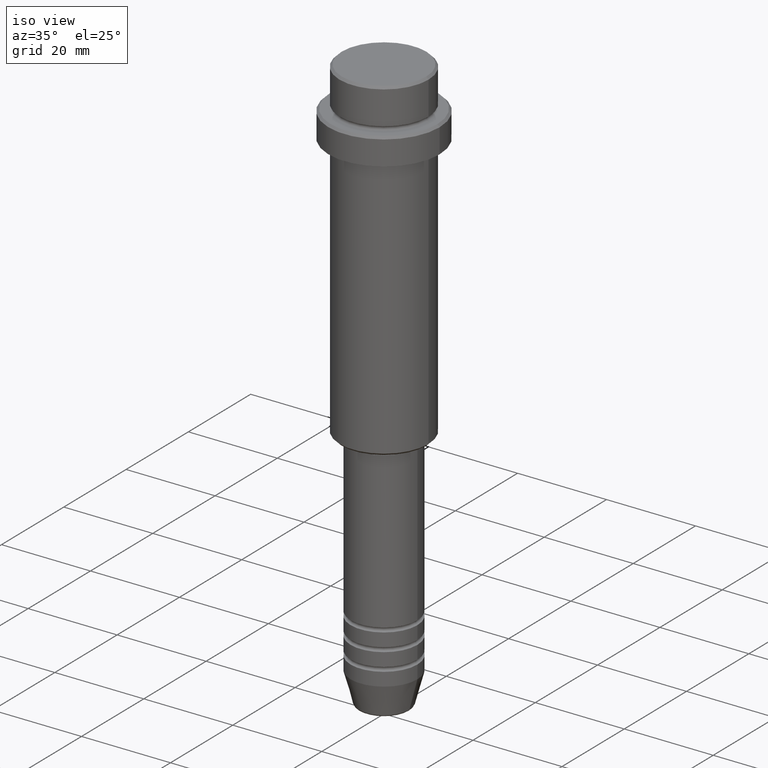
[diagram: clean part render]
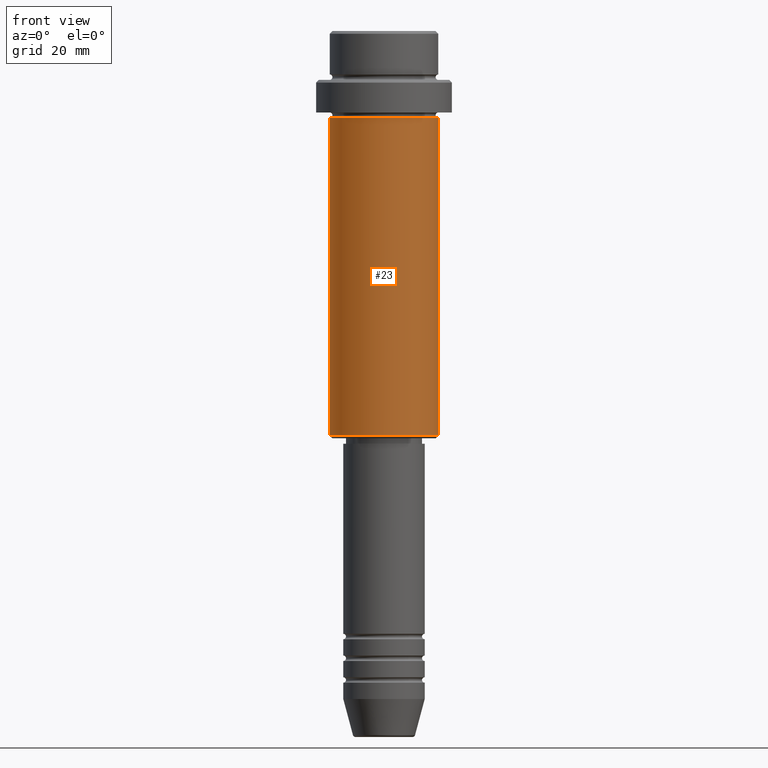
[diagram: tour spotlight — one face highlighted and labeled with its STEP entity id]
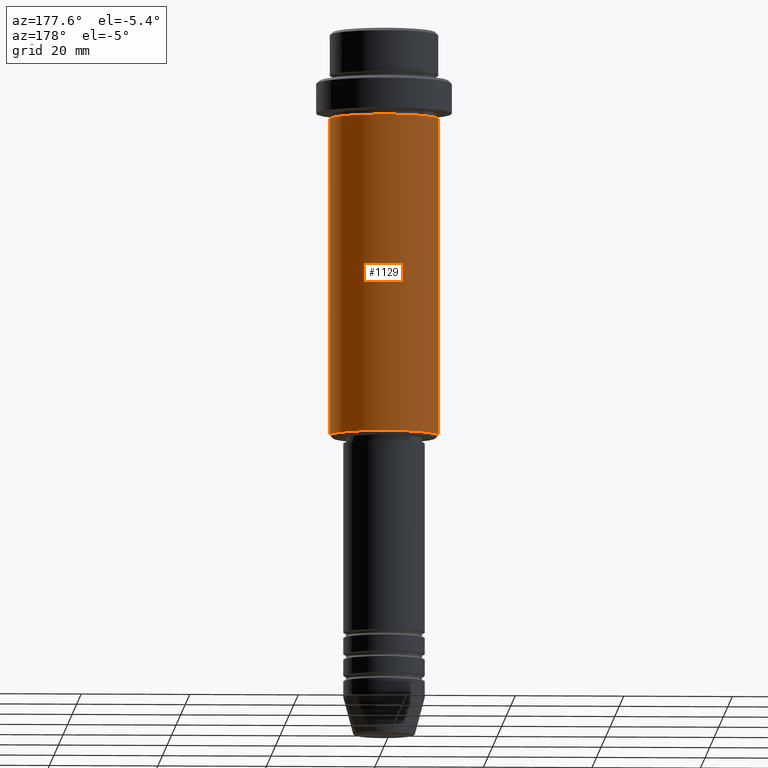
[diagram: tour spotlight — one face highlighted and labeled with its STEP entity id]
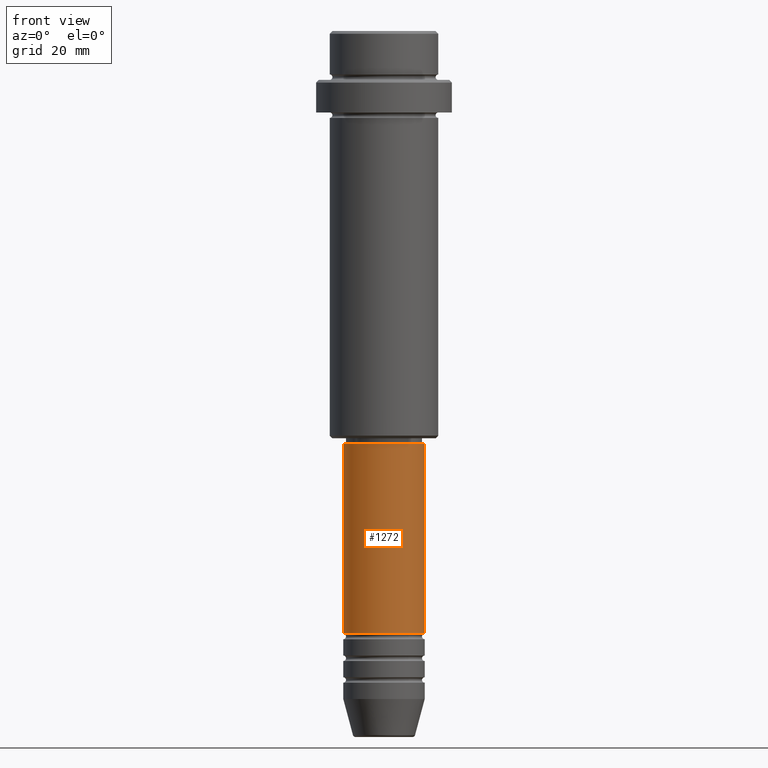
[diagram: tour spotlight — one face highlighted and labeled with its STEP entity id]
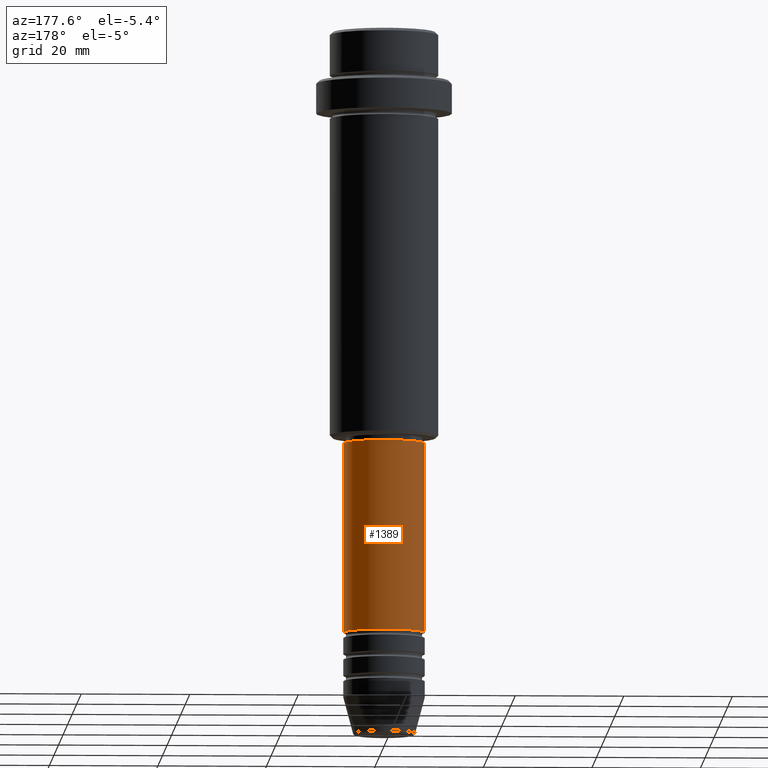
[diagram: tour spotlight — one face highlighted and labeled with its STEP entity id]
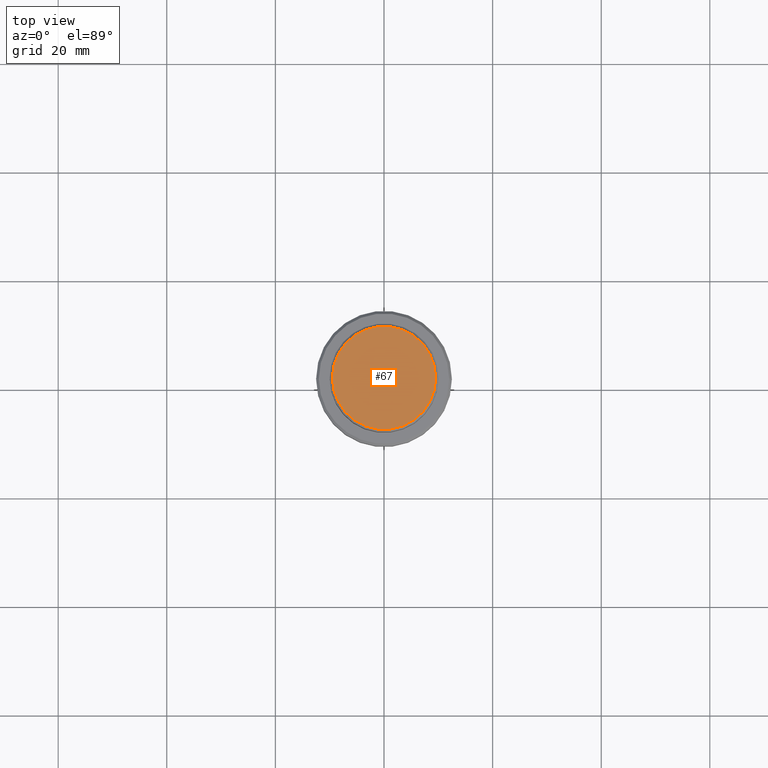
[diagram: tour spotlight — one face highlighted and labeled with its STEP entity id]
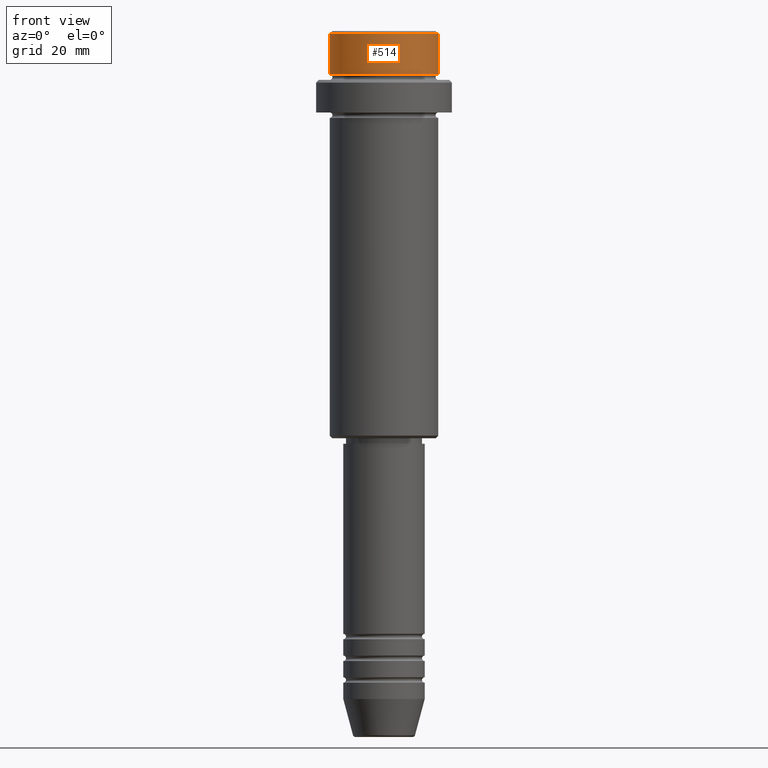
[diagram: tour spotlight — one face highlighted and labeled with its STEP entity id]
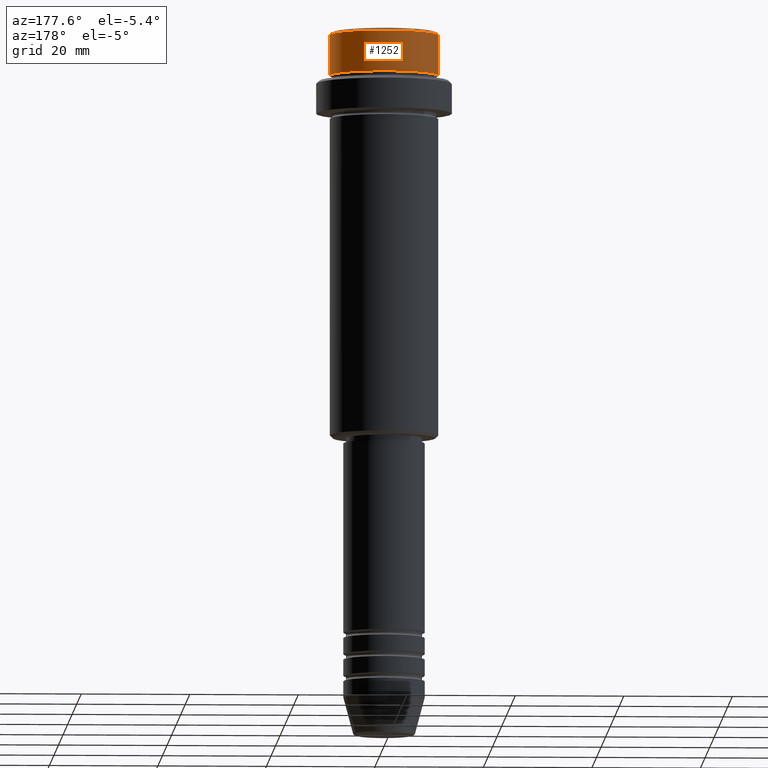
[diagram: tour spotlight — one face highlighted and labeled with its STEP entity id]
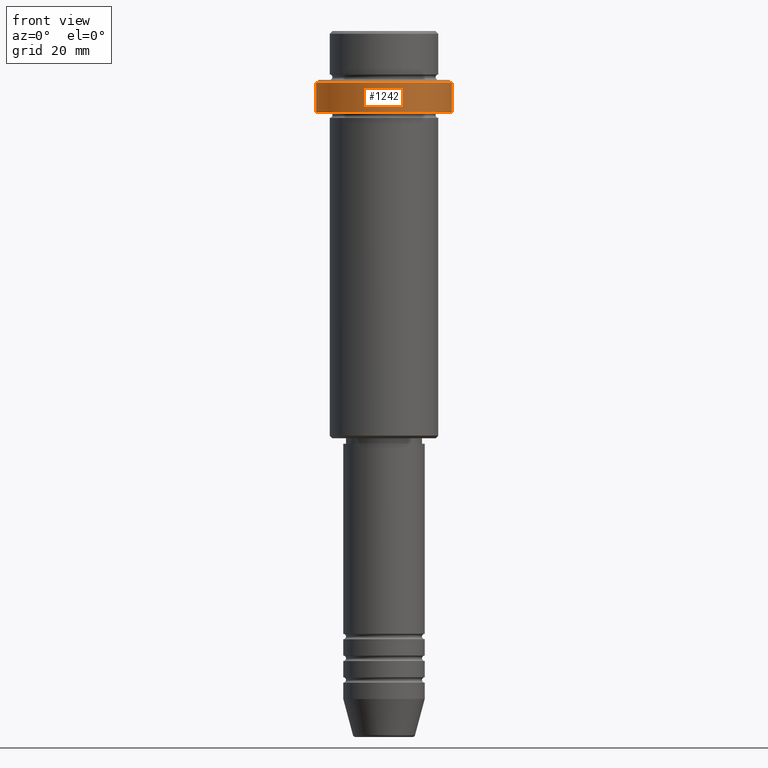
[diagram: tour spotlight — one face highlighted and labeled with its STEP entity id]
A machine part: a face-by-face anatomy tour. The part has 52 B-rep faces; the first image is the clean iso view, then the 8 largest visible faces are spotlighted one at a time (largest first), each with its STEP entity span.

Face 1 — front view, entity #23. In plain terms, the highlighted cylindrical surface (partial cylindrical patch) has radius 10 mm, axis along (-0, -0, 1).
Definition (entity closure, byte-faithful):
#23 = ADVANCED_FACE ( 'NONE', ( #491 ), #80, .T. ) ;
#31 = DIRECTION ( 'NONE',  ( -1.000000000000000000, 0.000000000000000000, 0.000000000000000000 ) ) ;
#38 = AXIS2_PLACEMENT_3D ( 'NONE', #1281, #190, #270 ) ;
#51 = CARTESIAN_POINT ( 'NONE',  ( 9.999999999999998224, 0.000000000000000000, 0.000000000000000000 ) ) ;
#80 = CYLINDRICAL_SURFACE ( 'NONE', #121, 9.999999999999998224 ) ;
#121 = AXIS2_PLACEMENT_3D ( 'NONE', #1266, #271, #1051 ) ;
#174 = EDGE_CURVE ( 'NONE', #532, #883, #996, .T. ) ;
#190 = DIRECTION ( 'NONE',  ( -0.000000000000000000, -0.000000000000000000, 1.000000000000000000 ) ) ;
#270 = DIRECTION ( 'NONE',  ( 1.000000000000000000, 0.000000000000000000, 0.000000000000000000 ) ) ;
#271 = DIRECTION ( 'NONE',  ( -0.000000000000000000, -0.000000000000000000, 1.000000000000000000 ) ) ;
#325 = CARTESIAN_POINT ( 'NONE',  ( -9.999999999999998224, 1.224646799147353059E-15, -74.50000000000001421 ) ) ;
#390 = AXIS2_PLACEMENT_3D ( 'NONE', #1119, #1345, #31 ) ;
#416 = CIRCLE ( 'NONE', #390, 9.999999999999998224 ) ;
#451 = EDGE_CURVE ( 'NONE', #883, #1188, #534, .T. ) ;
#491 = FACE_OUTER_BOUND ( 'NONE', #1293, .T. ) ;
#521 = ORIENTED_EDGE ( 'NONE', *, *, #174, .F. ) ;
#532 = VERTEX_POINT ( 'NONE', #325 ) ;
#534 = CIRCLE ( 'NONE', #38, 9.999999999999998224 ) ;
#550 = CARTESIAN_POINT ( 'NONE',  ( -9.999999999999998224, 1.224646799147353059E-15, -16.00000000000000000 ) ) ;
#675 = ORIENTED_EDGE ( 'NONE', *, *, #838, .T. ) ;
#746 = ORIENTED_EDGE ( 'NONE', *, *, #451, .F. ) ;
#753 = CARTESIAN_POINT ( 'NONE',  ( -9.999999999999998224, 1.224646799147353059E-15, 0.000000000000000000 ) ) ;
#757 = CARTESIAN_POINT ( 'NONE',  ( 9.999999999999998224, 0.000000000000000000, -16.00000000000000000 ) ) ;
#814 = VECTOR ( 'NONE', #1311, 1000.000000000000000 ) ;
#838 = EDGE_CURVE ( 'NONE', #988, #1188, #913, .T. ) ;
#883 = VERTEX_POINT ( 'NONE', #550 ) ;
#913 = LINE ( 'NONE', #51, #923 ) ;
#923 = VECTOR ( 'NONE', #1358, 1000.000000000000000 ) ;
#988 = VERTEX_POINT ( 'NONE', #1363 ) ;
#996 = LINE ( 'NONE', #753, #814 ) ;
#1051 = DIRECTION ( 'NONE',  ( 1.000000000000000000, 0.000000000000000000, 0.000000000000000000 ) ) ;
#1106 = ORIENTED_EDGE ( 'NONE', *, *, #1308, .T. ) ;
#1119 = CARTESIAN_POINT ( 'NONE',  ( 0.000000000000000000, 0.000000000000000000, -74.50000000000001421 ) ) ;
#1188 = VERTEX_POINT ( 'NONE', #757 ) ;
#1266 = CARTESIAN_POINT ( 'NONE',  ( 0.000000000000000000, 0.000000000000000000, 0.000000000000000000 ) ) ;
#1281 = CARTESIAN_POINT ( 'NONE',  ( 0.000000000000000000, 0.000000000000000000, -16.00000000000000000 ) ) ;
#1293 = EDGE_LOOP ( 'NONE', ( #521, #1106, #675, #746 ) ) ;
#1308 = EDGE_CURVE ( 'NONE', #532, #988, #416, .T. ) ;
#1311 = DIRECTION ( 'NONE',  ( -0.000000000000000000, -0.000000000000000000, 1.000000000000000000 ) ) ;
#1345 = DIRECTION ( 'NONE',  ( -0.000000000000000000, -0.000000000000000000, 1.000000000000000000 ) ) ;
#1358 = DIRECTION ( 'NONE',  ( -0.000000000000000000, -0.000000000000000000, 1.000000000000000000 ) ) ;
#1363 = CARTESIAN_POINT ( 'NONE',  ( 9.999999999999998224, 0.000000000000000000, -74.50000000000001421 ) ) ;

Face 2 — auxiliary view, entity #1129. In plain terms, the highlighted cylindrical surface (partial cylindrical patch) has radius 10 mm, axis along (-0, -0, 1).
Definition (entity closure, byte-faithful):
#51 = CARTESIAN_POINT ( 'NONE',  ( 9.999999999999998224, 0.000000000000000000, 0.000000000000000000 ) ) ;
#93 = ORIENTED_EDGE ( 'NONE', *, *, #885, .F. ) ;
#166 = ORIENTED_EDGE ( 'NONE', *, *, #174, .T. ) ;
#174 = EDGE_CURVE ( 'NONE', #532, #883, #996, .T. ) ;
#219 = AXIS2_PLACEMENT_3D ( 'NONE', #1102, #1315, #308 ) ;
#230 = DIRECTION ( 'NONE',  ( -0.000000000000000000, -0.000000000000000000, 1.000000000000000000 ) ) ;
#232 = ORIENTED_EDGE ( 'NONE', *, *, #838, .F. ) ;
#265 = CARTESIAN_POINT ( 'NONE',  ( 0.000000000000000000, 0.000000000000000000, -16.00000000000000000 ) ) ;
#308 = DIRECTION ( 'NONE',  ( -1.000000000000000000, 0.000000000000000000, 0.000000000000000000 ) ) ;
#325 = CARTESIAN_POINT ( 'NONE',  ( -9.999999999999998224, 1.224646799147353059E-15, -74.50000000000001421 ) ) ;
#370 = EDGE_LOOP ( 'NONE', ( #971, #166, #93, #232 ) ) ;
#372 = CIRCLE ( 'NONE', #599, 9.999999999999998224 ) ;
#394 = CIRCLE ( 'NONE', #219, 9.999999999999998224 ) ;
#501 = FACE_OUTER_BOUND ( 'NONE', #370, .T. ) ;
#515 = CARTESIAN_POINT ( 'NONE',  ( 0.000000000000000000, 0.000000000000000000, 0.000000000000000000 ) ) ;
#532 = VERTEX_POINT ( 'NONE', #325 ) ;
#550 = CARTESIAN_POINT ( 'NONE',  ( -9.999999999999998224, 1.224646799147353059E-15, -16.00000000000000000 ) ) ;
#599 = AXIS2_PLACEMENT_3D ( 'NONE', #265, #230, #874 ) ;
#609 = DIRECTION ( 'NONE',  ( 1.000000000000000000, 0.000000000000000000, 0.000000000000000000 ) ) ;
#625 = EDGE_CURVE ( 'NONE', #988, #532, #394, .T. ) ;
#753 = CARTESIAN_POINT ( 'NONE',  ( -9.999999999999998224, 1.224646799147353059E-15, 0.000000000000000000 ) ) ;
#757 = CARTESIAN_POINT ( 'NONE',  ( 9.999999999999998224, 0.000000000000000000, -16.00000000000000000 ) ) ;
#814 = VECTOR ( 'NONE', #1311, 1000.000000000000000 ) ;
#838 = EDGE_CURVE ( 'NONE', #988, #1188, #913, .T. ) ;
#874 = DIRECTION ( 'NONE',  ( 1.000000000000000000, 0.000000000000000000, 0.000000000000000000 ) ) ;
#883 = VERTEX_POINT ( 'NONE', #550 ) ;
#885 = EDGE_CURVE ( 'NONE', #1188, #883, #372, .T. ) ;
#913 = LINE ( 'NONE', #51, #923 ) ;
#923 = VECTOR ( 'NONE', #1358, 1000.000000000000000 ) ;
#971 = ORIENTED_EDGE ( 'NONE', *, *, #625, .T. ) ;
#988 = VERTEX_POINT ( 'NONE', #1363 ) ;
#996 = LINE ( 'NONE', #753, #814 ) ;
#1067 = CYLINDRICAL_SURFACE ( 'NONE', #1341, 9.999999999999998224 ) ;
#1102 = CARTESIAN_POINT ( 'NONE',  ( 0.000000000000000000, 0.000000000000000000, -74.50000000000001421 ) ) ;
#1129 = ADVANCED_FACE ( 'NONE', ( #501 ), #1067, .T. ) ;
#1188 = VERTEX_POINT ( 'NONE', #757 ) ;
#1311 = DIRECTION ( 'NONE',  ( -0.000000000000000000, -0.000000000000000000, 1.000000000000000000 ) ) ;
#1315 = DIRECTION ( 'NONE',  ( -0.000000000000000000, -0.000000000000000000, 1.000000000000000000 ) ) ;
#1341 = AXIS2_PLACEMENT_3D ( 'NONE', #515, #1384, #609 ) ;
#1358 = DIRECTION ( 'NONE',  ( -0.000000000000000000, -0.000000000000000000, 1.000000000000000000 ) ) ;
#1363 = CARTESIAN_POINT ( 'NONE',  ( 9.999999999999998224, 0.000000000000000000, -74.50000000000001421 ) ) ;
#1384 = DIRECTION ( 'NONE',  ( -0.000000000000000000, -0.000000000000000000, 1.000000000000000000 ) ) ;

Face 3 — front view, entity #1272. In plain terms, the highlighted cylindrical surface (partial cylindrical patch) has radius 7.5 mm, axis along (-0, -0, 1).
Definition (entity closure, byte-faithful):
#21 = ORIENTED_EDGE ( 'NONE', *, *, #1155, .F. ) ;
#103 = EDGE_LOOP ( 'NONE', ( #21, #1005, #1039, #186 ) ) ;
#106 = CYLINDRICAL_SURFACE ( 'NONE', #305, 7.500000000000000000 ) ;
#186 = ORIENTED_EDGE ( 'NONE', *, *, #433, .F. ) ;
#192 = VERTEX_POINT ( 'NONE', #1196 ) ;
#196 = DIRECTION ( 'NONE',  ( -0.000000000000000000, -0.000000000000000000, 1.000000000000000000 ) ) ;
#212 = CARTESIAN_POINT ( 'NONE',  ( -7.500000000000000000, 9.184850993605147944E-16, -110.9999999999998863 ) ) ;
#299 = CARTESIAN_POINT ( 'NONE',  ( 0.000000000000000000, 0.000000000000000000, -110.9999999999998863 ) ) ;
#305 = AXIS2_PLACEMENT_3D ( 'NONE', #535, #1307, #315 ) ;
#306 = VECTOR ( 'NONE', #591, 1000.000000000000000 ) ;
#315 = DIRECTION ( 'NONE',  ( 1.000000000000000000, 0.000000000000000000, 0.000000000000000000 ) ) ;
#324 = CIRCLE ( 'NONE', #1178, 7.500000000000000000 ) ;
#333 = CARTESIAN_POINT ( 'NONE',  ( 7.500000000000000000, 0.000000000000000000, -110.9999999999998863 ) ) ;
#378 = DIRECTION ( 'NONE',  ( 1.000000000000000000, 0.000000000000000000, 0.000000000000000000 ) ) ;
#404 = EDGE_CURVE ( 'NONE', #819, #946, #495, .T. ) ;
#418 = DIRECTION ( 'NONE',  ( -0.000000000000000000, -0.000000000000000000, 1.000000000000000000 ) ) ;
#433 = EDGE_CURVE ( 'NONE', #192, #946, #324, .T. ) ;
#495 = LINE ( 'NONE', #1393, #306 ) ;
#535 = CARTESIAN_POINT ( 'NONE',  ( 0.000000000000000000, 0.000000000000000000, 0.000000000000000000 ) ) ;
#591 = DIRECTION ( 'NONE',  ( -0.000000000000000000, -0.000000000000000000, 1.000000000000000000 ) ) ;
#610 = DIRECTION ( 'NONE',  ( 1.000000000000000000, 0.000000000000000000, 0.000000000000000000 ) ) ;
#634 = FACE_OUTER_BOUND ( 'NONE', #103, .T. ) ;
#651 = CARTESIAN_POINT ( 'NONE',  ( -7.500000000000000000, 9.184850993605147944E-16, 0.000000000000000000 ) ) ;
#656 = VERTEX_POINT ( 'NONE', #212 ) ;
#692 = CARTESIAN_POINT ( 'NONE',  ( 7.500000000000000000, 0.000000000000000000, -76.00000000000001421 ) ) ;
#819 = VERTEX_POINT ( 'NONE', #333 ) ;
#832 = CARTESIAN_POINT ( 'NONE',  ( 0.000000000000000000, 0.000000000000000000, -76.00000000000001421 ) ) ;
#869 = CIRCLE ( 'NONE', #1294, 7.500000000000000000 ) ;
#946 = VERTEX_POINT ( 'NONE', #692 ) ;
#968 = LINE ( 'NONE', #651, #1362 ) ;
#1005 = ORIENTED_EDGE ( 'NONE', *, *, #1122, .T. ) ;
#1039 = ORIENTED_EDGE ( 'NONE', *, *, #404, .T. ) ;
#1122 = EDGE_CURVE ( 'NONE', #656, #819, #869, .T. ) ;
#1155 = EDGE_CURVE ( 'NONE', #656, #192, #968, .T. ) ;
#1174 = DIRECTION ( 'NONE',  ( -0.000000000000000000, -0.000000000000000000, 1.000000000000000000 ) ) ;
#1178 = AXIS2_PLACEMENT_3D ( 'NONE', #832, #196, #610 ) ;
#1196 = CARTESIAN_POINT ( 'NONE',  ( -7.500000000000000000, 9.184850993605147944E-16, -76.00000000000001421 ) ) ;
#1272 = ADVANCED_FACE ( 'NONE', ( #634 ), #106, .T. ) ;
#1294 = AXIS2_PLACEMENT_3D ( 'NONE', #299, #1174, #378 ) ;
#1307 = DIRECTION ( 'NONE',  ( -0.000000000000000000, -0.000000000000000000, 1.000000000000000000 ) ) ;
#1362 = VECTOR ( 'NONE', #418, 1000.000000000000000 ) ;
#1393 = CARTESIAN_POINT ( 'NONE',  ( 7.500000000000000000, 0.000000000000000000, 0.000000000000000000 ) ) ;

Face 4 — auxiliary view, entity #1389. In plain terms, the highlighted cylindrical surface (partial cylindrical patch) has radius 7.5 mm, axis along (-0, -0, 1).
Definition (entity closure, byte-faithful):
#3 = ORIENTED_EDGE ( 'NONE', *, *, #404, .F. ) ;
#99 = DIRECTION ( 'NONE',  ( 1.000000000000000000, 0.000000000000000000, 0.000000000000000000 ) ) ;
#104 = EDGE_CURVE ( 'NONE', #819, #656, #939, .T. ) ;
#113 = CARTESIAN_POINT ( 'NONE',  ( 0.000000000000000000, 0.000000000000000000, -110.9999999999998863 ) ) ;
#143 = CARTESIAN_POINT ( 'NONE',  ( 0.000000000000000000, 0.000000000000000000, 0.000000000000000000 ) ) ;
#151 = DIRECTION ( 'NONE',  ( 1.000000000000000000, 0.000000000000000000, 0.000000000000000000 ) ) ;
#192 = VERTEX_POINT ( 'NONE', #1196 ) ;
#212 = CARTESIAN_POINT ( 'NONE',  ( -7.500000000000000000, 9.184850993605147944E-16, -110.9999999999998863 ) ) ;
#243 = FACE_OUTER_BOUND ( 'NONE', #389, .T. ) ;
#306 = VECTOR ( 'NONE', #591, 1000.000000000000000 ) ;
#316 = EDGE_CURVE ( 'NONE', #946, #192, #825, .T. ) ;
#333 = CARTESIAN_POINT ( 'NONE',  ( 7.500000000000000000, 0.000000000000000000, -110.9999999999998863 ) ) ;
#337 = AXIS2_PLACEMENT_3D ( 'NONE', #113, #738, #99 ) ;
#389 = EDGE_LOOP ( 'NONE', ( #1063, #725, #771, #3 ) ) ;
#404 = EDGE_CURVE ( 'NONE', #819, #946, #495, .T. ) ;
#418 = DIRECTION ( 'NONE',  ( -0.000000000000000000, -0.000000000000000000, 1.000000000000000000 ) ) ;
#495 = LINE ( 'NONE', #1393, #306 ) ;
#573 = CARTESIAN_POINT ( 'NONE',  ( 0.000000000000000000, 0.000000000000000000, -76.00000000000001421 ) ) ;
#591 = DIRECTION ( 'NONE',  ( -0.000000000000000000, -0.000000000000000000, 1.000000000000000000 ) ) ;
#651 = CARTESIAN_POINT ( 'NONE',  ( -7.500000000000000000, 9.184850993605147944E-16, 0.000000000000000000 ) ) ;
#656 = VERTEX_POINT ( 'NONE', #212 ) ;
#676 = DIRECTION ( 'NONE',  ( 1.000000000000000000, 0.000000000000000000, 0.000000000000000000 ) ) ;
#678 = CYLINDRICAL_SURFACE ( 'NONE', #1068, 7.500000000000000000 ) ;
#692 = CARTESIAN_POINT ( 'NONE',  ( 7.500000000000000000, 0.000000000000000000, -76.00000000000001421 ) ) ;
#725 = ORIENTED_EDGE ( 'NONE', *, *, #1155, .T. ) ;
#738 = DIRECTION ( 'NONE',  ( -0.000000000000000000, -0.000000000000000000, 1.000000000000000000 ) ) ;
#771 = ORIENTED_EDGE ( 'NONE', *, *, #316, .F. ) ;
#819 = VERTEX_POINT ( 'NONE', #333 ) ;
#825 = CIRCLE ( 'NONE', #1152, 7.500000000000000000 ) ;
#884 = DIRECTION ( 'NONE',  ( -0.000000000000000000, -0.000000000000000000, 1.000000000000000000 ) ) ;
#939 = CIRCLE ( 'NONE', #337, 7.500000000000000000 ) ;
#946 = VERTEX_POINT ( 'NONE', #692 ) ;
#968 = LINE ( 'NONE', #651, #1362 ) ;
#1063 = ORIENTED_EDGE ( 'NONE', *, *, #104, .T. ) ;
#1068 = AXIS2_PLACEMENT_3D ( 'NONE', #143, #1125, #151 ) ;
#1125 = DIRECTION ( 'NONE',  ( -0.000000000000000000, -0.000000000000000000, 1.000000000000000000 ) ) ;
#1152 = AXIS2_PLACEMENT_3D ( 'NONE', #573, #884, #676 ) ;
#1155 = EDGE_CURVE ( 'NONE', #656, #192, #968, .T. ) ;
#1196 = CARTESIAN_POINT ( 'NONE',  ( -7.500000000000000000, 9.184850993605147944E-16, -76.00000000000001421 ) ) ;
#1362 = VECTOR ( 'NONE', #418, 1000.000000000000000 ) ;
#1389 = ADVANCED_FACE ( 'NONE', ( #243 ), #678, .T. ) ;
#1393 = CARTESIAN_POINT ( 'NONE',  ( 7.500000000000000000, 0.000000000000000000, 0.000000000000000000 ) ) ;

Face 5 — top view, entity #67. In plain terms, the highlighted planar face has unit normal (0, -0, 1).
Definition (entity closure, byte-faithful):
#64 = CIRCLE ( 'NONE', #645, 9.500000000000008882 ) ;
#67 = ADVANCED_FACE ( 'NONE', ( #607 ), #1056, .T. ) ;
#75 = CARTESIAN_POINT ( 'NONE',  ( 0.000000000000000000, 0.000000000000000000, 0.000000000000000000 ) ) ;
#85 = DIRECTION ( 'NONE',  ( 1.000000000000000000, 0.000000000000000000, 0.000000000000000000 ) ) ;
#169 = ORIENTED_EDGE ( 'NONE', *, *, #1028, .T. ) ;
#237 = CARTESIAN_POINT ( 'NONE',  ( 0.000000000000000000, 0.000000000000000000, 0.000000000000000000 ) ) ;
#302 = VERTEX_POINT ( 'NONE', #1015 ) ;
#358 = AXIS2_PLACEMENT_3D ( 'NONE', #75, #839, #1380 ) ;
#423 = EDGE_LOOP ( 'NONE', ( #1187, #169 ) ) ;
#484 = CIRCLE ( 'NONE', #640, 9.500000000000008882 ) ;
#607 = FACE_OUTER_BOUND ( 'NONE', #423, .T. ) ;
#640 = AXIS2_PLACEMENT_3D ( 'NONE', #805, #1045, #85 ) ;
#645 = AXIS2_PLACEMENT_3D ( 'NONE', #237, #1024, #1231 ) ;
#721 = EDGE_CURVE ( 'NONE', #876, #302, #64, .T. ) ;
#805 = CARTESIAN_POINT ( 'NONE',  ( 0.000000000000000000, 0.000000000000000000, 0.000000000000000000 ) ) ;
#839 = DIRECTION ( 'NONE',  ( 0.000000000000000000, -0.000000000000000000, 1.000000000000000000 ) ) ;
#876 = VERTEX_POINT ( 'NONE', #1034 ) ;
#1015 = CARTESIAN_POINT ( 'NONE',  ( 9.500000000000008882, 1.194030629168669864E-15, 0.000000000000000000 ) ) ;
#1024 = DIRECTION ( 'NONE',  ( -0.000000000000000000, -0.000000000000000000, 1.000000000000000000 ) ) ;
#1028 = EDGE_CURVE ( 'NONE', #302, #876, #484, .T. ) ;
#1034 = CARTESIAN_POINT ( 'NONE',  ( -9.500000000000008882, 0.000000000000000000, 0.000000000000000000 ) ) ;
#1045 = DIRECTION ( 'NONE',  ( -0.000000000000000000, -0.000000000000000000, 1.000000000000000000 ) ) ;
#1056 = PLANE ( 'NONE',  #358 ) ;
#1187 = ORIENTED_EDGE ( 'NONE', *, *, #721, .T. ) ;
#1231 = DIRECTION ( 'NONE',  ( 1.000000000000000000, 0.000000000000000000, 0.000000000000000000 ) ) ;
#1380 = DIRECTION ( 'NONE',  ( 1.000000000000000000, 0.000000000000000000, 0.000000000000000000 ) ) ;

Face 6 — front view, entity #514. In plain terms, the highlighted cylindrical surface (partial cylindrical patch) has radius 10 mm, axis along (-0, -0, 1).
Definition (entity closure, byte-faithful):
#22 = LINE ( 'NONE', #908, #536 ) ;
#56 = VERTEX_POINT ( 'NONE', #1157 ) ;
#132 = CIRCLE ( 'NONE', #919, 9.999999999999998224 ) ;
#152 = ORIENTED_EDGE ( 'NONE', *, *, #1230, .T. ) ;
#195 = DIRECTION ( 'NONE',  ( 1.000000000000000000, 0.000000000000000000, 0.000000000000000000 ) ) ;
#254 = LINE ( 'NONE', #564, #1392 ) ;
#334 = VERTEX_POINT ( 'NONE', #587 ) ;
#339 = EDGE_LOOP ( 'NONE', ( #828, #152, #696, #760 ) ) ;
#387 = DIRECTION ( 'NONE',  ( -0.000000000000000000, -0.000000000000000000, 1.000000000000000000 ) ) ;
#426 = CARTESIAN_POINT ( 'NONE',  ( 0.000000000000000000, 0.000000000000000000, -7.999999999999998224 ) ) ;
#444 = DIRECTION ( 'NONE',  ( -0.000000000000000000, -0.000000000000000000, 1.000000000000000000 ) ) ;
#467 = VERTEX_POINT ( 'NONE', #1398 ) ;
#514 = ADVANCED_FACE ( 'NONE', ( #1385 ), #1050, .T. ) ;
#536 = VECTOR ( 'NONE', #444, 1000.000000000000000 ) ;
#564 = CARTESIAN_POINT ( 'NONE',  ( -9.999999999999998224, 1.224646799147353059E-15, 0.000000000000000000 ) ) ;
#583 = CARTESIAN_POINT ( 'NONE',  ( -9.999999999999998224, 1.224646799147353059E-15, -0.4999999999999831246 ) ) ;
#587 = CARTESIAN_POINT ( 'NONE',  ( 9.999999999999998224, 0.000000000000000000, -0.4999999999999831246 ) ) ;
#696 = ORIENTED_EDGE ( 'NONE', *, *, #699, .T. ) ;
#699 = EDGE_CURVE ( 'NONE', #467, #334, #22, .T. ) ;
#714 = CARTESIAN_POINT ( 'NONE',  ( 0.000000000000000000, 0.000000000000000000, -0.4999999999999831246 ) ) ;
#723 = DIRECTION ( 'NONE',  ( 0.000000000000000000, 0.000000000000000000, -1.000000000000000000 ) ) ;
#754 = CIRCLE ( 'NONE', #1317, 9.999999999999998224 ) ;
#760 = ORIENTED_EDGE ( 'NONE', *, *, #1105, .T. ) ;
#763 = DIRECTION ( 'NONE',  ( -0.000000000000000000, -0.000000000000000000, 1.000000000000000000 ) ) ;
#793 = EDGE_CURVE ( 'NONE', #56, #979, #254, .T. ) ;
#816 = CARTESIAN_POINT ( 'NONE',  ( 0.000000000000000000, 0.000000000000000000, 0.000000000000000000 ) ) ;
#828 = ORIENTED_EDGE ( 'NONE', *, *, #793, .F. ) ;
#908 = CARTESIAN_POINT ( 'NONE',  ( 9.999999999999998224, 0.000000000000000000, 0.000000000000000000 ) ) ;
#919 = AXIS2_PLACEMENT_3D ( 'NONE', #426, #763, #1088 ) ;
#979 = VERTEX_POINT ( 'NONE', #583 ) ;
#999 = AXIS2_PLACEMENT_3D ( 'NONE', #816, #387, #1265 ) ;
#1014 = DIRECTION ( 'NONE',  ( -0.000000000000000000, -0.000000000000000000, 1.000000000000000000 ) ) ;
#1050 = CYLINDRICAL_SURFACE ( 'NONE', #999, 9.999999999999998224 ) ;
#1088 = DIRECTION ( 'NONE',  ( 1.000000000000000000, 0.000000000000000000, 0.000000000000000000 ) ) ;
#1105 = EDGE_CURVE ( 'NONE', #334, #979, #754, .T. ) ;
#1157 = CARTESIAN_POINT ( 'NONE',  ( -9.999999999999998224, 1.224646799147353059E-15, -7.999999999999998224 ) ) ;
#1230 = EDGE_CURVE ( 'NONE', #56, #467, #132, .T. ) ;
#1265 = DIRECTION ( 'NONE',  ( 1.000000000000000000, 0.000000000000000000, 0.000000000000000000 ) ) ;
#1317 = AXIS2_PLACEMENT_3D ( 'NONE', #714, #723, #195 ) ;
#1385 = FACE_OUTER_BOUND ( 'NONE', #339, .T. ) ;
#1392 = VECTOR ( 'NONE', #1014, 1000.000000000000000 ) ;
#1398 = CARTESIAN_POINT ( 'NONE',  ( 9.999999999999998224, 0.000000000000000000, -7.999999999999998224 ) ) ;

Face 7 — auxiliary view, entity #1252. In plain terms, the highlighted cylindrical surface (partial cylindrical patch) has radius 10 mm, axis along (-0, -0, 1).
Definition (entity closure, byte-faithful):
#22 = LINE ( 'NONE', #908, #536 ) ;
#36 = CIRCLE ( 'NONE', #388, 9.999999999999998224 ) ;
#40 = DIRECTION ( 'NONE',  ( 1.000000000000000000, 0.000000000000000000, 0.000000000000000000 ) ) ;
#56 = VERTEX_POINT ( 'NONE', #1157 ) ;
#254 = LINE ( 'NONE', #564, #1392 ) ;
#311 = FACE_OUTER_BOUND ( 'NONE', #680, .T. ) ;
#334 = VERTEX_POINT ( 'NONE', #587 ) ;
#388 = AXIS2_PLACEMENT_3D ( 'NONE', #1143, #432, #40 ) ;
#409 = DIRECTION ( 'NONE',  ( -0.000000000000000000, -0.000000000000000000, 1.000000000000000000 ) ) ;
#432 = DIRECTION ( 'NONE',  ( -0.000000000000000000, -0.000000000000000000, 1.000000000000000000 ) ) ;
#435 = ORIENTED_EDGE ( 'NONE', *, *, #732, .T. ) ;
#444 = DIRECTION ( 'NONE',  ( -0.000000000000000000, -0.000000000000000000, 1.000000000000000000 ) ) ;
#467 = VERTEX_POINT ( 'NONE', #1398 ) ;
#497 = ORIENTED_EDGE ( 'NONE', *, *, #793, .T. ) ;
#510 = AXIS2_PLACEMENT_3D ( 'NONE', #1190, #409, #841 ) ;
#536 = VECTOR ( 'NONE', #444, 1000.000000000000000 ) ;
#560 = DIRECTION ( 'NONE',  ( 0.000000000000000000, 0.000000000000000000, -1.000000000000000000 ) ) ;
#564 = CARTESIAN_POINT ( 'NONE',  ( -9.999999999999998224, 1.224646799147353059E-15, 0.000000000000000000 ) ) ;
#581 = CIRCLE ( 'NONE', #1047, 9.999999999999998224 ) ;
#583 = CARTESIAN_POINT ( 'NONE',  ( -9.999999999999998224, 1.224646799147353059E-15, -0.4999999999999831246 ) ) ;
#587 = CARTESIAN_POINT ( 'NONE',  ( 9.999999999999998224, 0.000000000000000000, -0.4999999999999831246 ) ) ;
#680 = EDGE_LOOP ( 'NONE', ( #1109, #497, #435, #797 ) ) ;
#699 = EDGE_CURVE ( 'NONE', #467, #334, #22, .T. ) ;
#732 = EDGE_CURVE ( 'NONE', #979, #334, #581, .T. ) ;
#793 = EDGE_CURVE ( 'NONE', #56, #979, #254, .T. ) ;
#797 = ORIENTED_EDGE ( 'NONE', *, *, #699, .F. ) ;
#841 = DIRECTION ( 'NONE',  ( 1.000000000000000000, 0.000000000000000000, 0.000000000000000000 ) ) ;
#908 = CARTESIAN_POINT ( 'NONE',  ( 9.999999999999998224, 0.000000000000000000, 0.000000000000000000 ) ) ;
#979 = VERTEX_POINT ( 'NONE', #583 ) ;
#1003 = EDGE_CURVE ( 'NONE', #467, #56, #36, .T. ) ;
#1014 = DIRECTION ( 'NONE',  ( -0.000000000000000000, -0.000000000000000000, 1.000000000000000000 ) ) ;
#1047 = AXIS2_PLACEMENT_3D ( 'NONE', #1339, #560, #1327 ) ;
#1109 = ORIENTED_EDGE ( 'NONE', *, *, #1003, .T. ) ;
#1143 = CARTESIAN_POINT ( 'NONE',  ( 0.000000000000000000, 0.000000000000000000, -7.999999999999998224 ) ) ;
#1157 = CARTESIAN_POINT ( 'NONE',  ( -9.999999999999998224, 1.224646799147353059E-15, -7.999999999999998224 ) ) ;
#1190 = CARTESIAN_POINT ( 'NONE',  ( 0.000000000000000000, 0.000000000000000000, 0.000000000000000000 ) ) ;
#1252 = ADVANCED_FACE ( 'NONE', ( #311 ), #1401, .T. ) ;
#1327 = DIRECTION ( 'NONE',  ( 1.000000000000000000, 0.000000000000000000, 0.000000000000000000 ) ) ;
#1339 = CARTESIAN_POINT ( 'NONE',  ( 0.000000000000000000, 0.000000000000000000, -0.4999999999999831246 ) ) ;
#1392 = VECTOR ( 'NONE', #1014, 1000.000000000000000 ) ;
#1398 = CARTESIAN_POINT ( 'NONE',  ( 9.999999999999998224, 0.000000000000000000, -7.999999999999998224 ) ) ;
#1401 = CYLINDRICAL_SURFACE ( 'NONE', #510, 9.999999999999998224 ) ;

Face 8 — front view, entity #1242. In plain terms, the highlighted cylindrical surface (partial cylindrical patch) has radius 12.5 mm, axis along (-0, -0, 1).
Definition (entity closure, byte-faithful):
#45 = CARTESIAN_POINT ( 'NONE',  ( -12.50000000000000000, 1.530808498934191521E-15, -9.499999999999976907 ) ) ;
#138 = DIRECTION ( 'NONE',  ( -0.000000000000000000, -0.000000000000000000, 1.000000000000000000 ) ) ;
#198 = EDGE_CURVE ( 'NONE', #1096, #329, #1253, .T. ) ;
#264 = VERTEX_POINT ( 'NONE', #1033 ) ;
#329 = VERTEX_POINT ( 'NONE', #466 ) ;
#331 = ORIENTED_EDGE ( 'NONE', *, *, #1172, .T. ) ;
#415 = AXIS2_PLACEMENT_3D ( 'NONE', #1312, #541, #1292 ) ;
#454 = DIRECTION ( 'NONE',  ( -0.000000000000000000, -0.000000000000000000, 1.000000000000000000 ) ) ;
#466 = CARTESIAN_POINT ( 'NONE',  ( 12.50000000000000000, 0.000000000000000000, -15.00000000000000000 ) ) ;
#520 = CYLINDRICAL_SURFACE ( 'NONE', #1391, 12.50000000000000000 ) ;
#541 = DIRECTION ( 'NONE',  ( 0.000000000000000000, 0.000000000000000000, -1.000000000000000000 ) ) ;
#549 = ORIENTED_EDGE ( 'NONE', *, *, #198, .T. ) ;
#603 = AXIS2_PLACEMENT_3D ( 'NONE', #655, #967, #1306 ) ;
#612 = EDGE_LOOP ( 'NONE', ( #1077, #549, #626, #331 ) ) ;
#626 = ORIENTED_EDGE ( 'NONE', *, *, #1302, .T. ) ;
#655 = CARTESIAN_POINT ( 'NONE',  ( 0.000000000000000000, 0.000000000000000000, -15.00000000000000000 ) ) ;
#674 = CARTESIAN_POINT ( 'NONE',  ( -12.50000000000000000, 1.530808498934191521E-15, 0.000000000000000000 ) ) ;
#722 = VERTEX_POINT ( 'NONE', #45 ) ;
#739 = EDGE_CURVE ( 'NONE', #1096, #722, #1351, .T. ) ;
#783 = CARTESIAN_POINT ( 'NONE',  ( 12.50000000000000000, 0.000000000000000000, 0.000000000000000000 ) ) ;
#789 = LINE ( 'NONE', #783, #896 ) ;
#849 = CIRCLE ( 'NONE', #415, 12.50000000000000000 ) ;
#896 = VECTOR ( 'NONE', #138, 1000.000000000000000 ) ;
#944 = CARTESIAN_POINT ( 'NONE',  ( -12.50000000000000000, 1.530808498934191521E-15, -15.00000000000000000 ) ) ;
#951 = VECTOR ( 'NONE', #454, 1000.000000000000000 ) ;
#962 = DIRECTION ( 'NONE',  ( 1.000000000000000000, 0.000000000000000000, 0.000000000000000000 ) ) ;
#967 = DIRECTION ( 'NONE',  ( -0.000000000000000000, -0.000000000000000000, 1.000000000000000000 ) ) ;
#1033 = CARTESIAN_POINT ( 'NONE',  ( 12.50000000000000000, 0.000000000000000000, -9.499999999999976907 ) ) ;
#1077 = ORIENTED_EDGE ( 'NONE', *, *, #739, .F. ) ;
#1096 = VERTEX_POINT ( 'NONE', #944 ) ;
#1104 = FACE_OUTER_BOUND ( 'NONE', #612, .T. ) ;
#1172 = EDGE_CURVE ( 'NONE', #264, #722, #849, .T. ) ;
#1184 = DIRECTION ( 'NONE',  ( -0.000000000000000000, -0.000000000000000000, 1.000000000000000000 ) ) ;
#1242 = ADVANCED_FACE ( 'NONE', ( #1104 ), #520, .T. ) ;
#1253 = CIRCLE ( 'NONE', #603, 12.50000000000000000 ) ;
#1292 = DIRECTION ( 'NONE',  ( 1.000000000000000000, 0.000000000000000000, 0.000000000000000000 ) ) ;
#1302 = EDGE_CURVE ( 'NONE', #329, #264, #789, .T. ) ;
#1303 = CARTESIAN_POINT ( 'NONE',  ( 0.000000000000000000, 0.000000000000000000, 0.000000000000000000 ) ) ;
#1306 = DIRECTION ( 'NONE',  ( 1.000000000000000000, 0.000000000000000000, 0.000000000000000000 ) ) ;
#1312 = CARTESIAN_POINT ( 'NONE',  ( 0.000000000000000000, 0.000000000000000000, -9.499999999999976907 ) ) ;
#1351 = LINE ( 'NONE', #674, #951 ) ;
#1391 = AXIS2_PLACEMENT_3D ( 'NONE', #1303, #1184, #962 ) ;